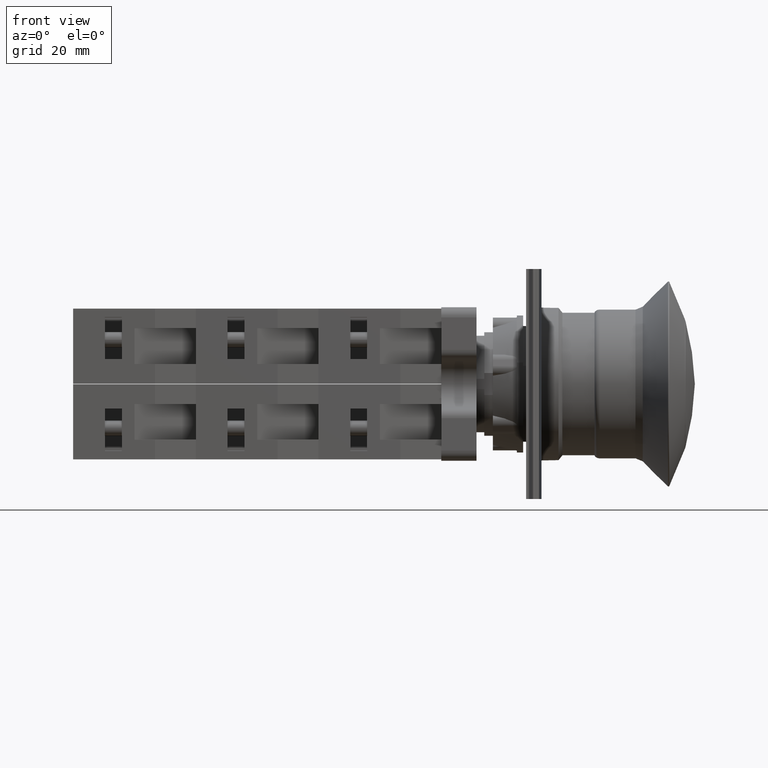
[diagram: clean part render]
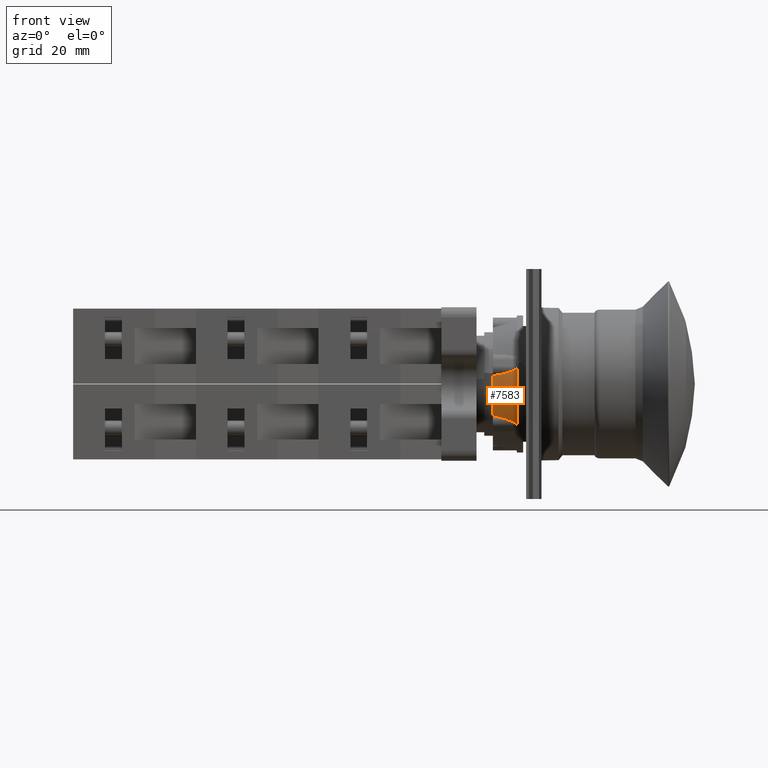
[diagram: same view with one face highlighted and labeled with its STEP entity id]
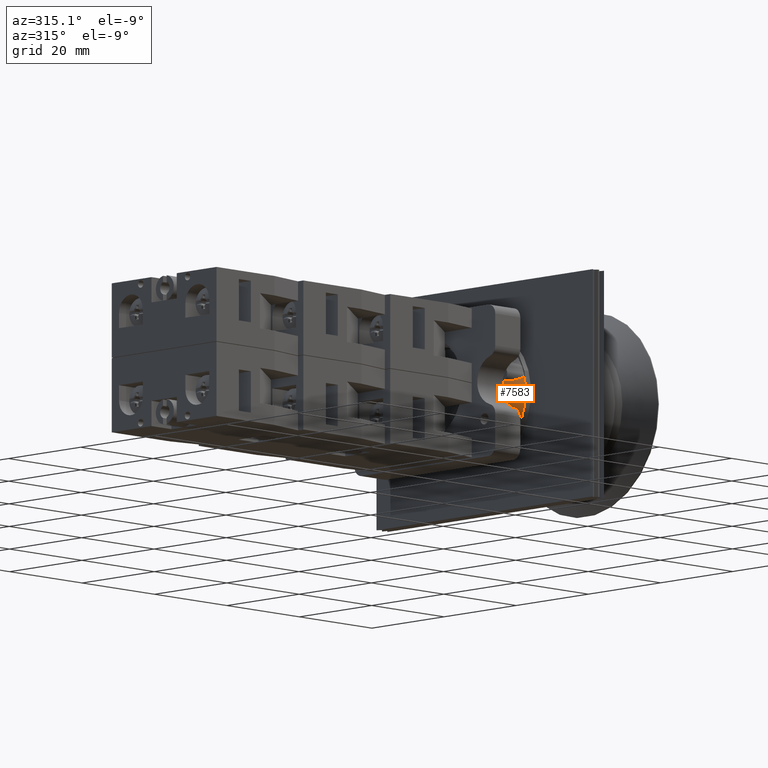
[diagram: same view with one face highlighted and labeled with its STEP entity id]
A machine part, front view. The second image highlights one B-rep face of the part: STEP entity #7583.
A second angle (auxiliary view) of the same face is appended — the face is thin or edge-on in the first view.
In plain terms, the highlighted conical surface has half-angle 14.357 deg.
Its self-contained STEP definition (entity closure, byte-faithful):
#6699=CARTESIAN_POINT('',(-5.624441413677321,18.914931874336848,-10.825933760222382));
#6700=VERTEX_POINT('',#6699);
#6708=CARTESIAN_POINT('',(-0.924441413677319,19.244718249735932,-9.063384223984867));
#6709=VERTEX_POINT('',#6708);
#6710=CARTESIAN_POINT('',(-0.924441413677319,19.244718249735932,-9.063384223984865));
#6711=CARTESIAN_POINT('',(-1.771683228070776,19.343194566671471,-9.264325757559057));
#6712=CARTESIAN_POINT('',(-2.642508015099925,19.405531265859736,-9.504138683602431));
#6713=CARTESIAN_POINT('',(-3.434810393553472,19.397010067540066,-9.771305654779747));
#6714=CARTESIAN_POINT('',(-3.583648307694508,19.395409318358475,-9.821494289572216));
#6715=CARTESIAN_POINT('',(-3.729719096947220,19.391263022758100,-9.872659971357169));
#6716=CARTESIAN_POINT('',(-3.872317070512479,19.384204800488050,-9.924780886224982));
#6717=CARTESIAN_POINT('',(-4.018377826272748,19.376975179664470,-9.978167480902116));
#6718=CARTESIAN_POINT('',(-4.169407172229653,19.366327672659747,-10.035664265001412));
#6719=CARTESIAN_POINT('',(-4.322920163511085,19.350335449332796,-10.097734828060455));
#6720=CARTESIAN_POINT('',(-4.570134522573309,19.324581881463715,-10.197692065133255));
#6721=CARTESIAN_POINT('',(-4.820924727797250,19.285654355509397,-10.308136178585210));
#6722=CARTESIAN_POINT('',(-5.047877207843794,19.222701734800324,-10.426739264444237));
#6723=CARTESIAN_POINT('',(-5.181444270855171,19.185652584003400,-10.496540069612912));
#6724=CARTESIAN_POINT('',(-5.307176962552016,19.140554111476771,-10.569123441844622));
#6725=CARTESIAN_POINT('',(-5.417192105387956,19.080253101045795,-10.646385317609532));
#6726=CARTESIAN_POINT('',(-5.488457681084371,19.041191330887049,-10.696433991945048));
#6727=CARTESIAN_POINT('',(-5.559948776567082,18.991345844627084,-10.753677919417465));
#6728=CARTESIAN_POINT('',(-5.612343651441613,18.929793662924457,-10.812033894663200));
#6729=CARTESIAN_POINT('',(-5.616499890349427,18.924911017950766,-10.816662999616701));
#6730=CARTESIAN_POINT('',(-5.620535544533194,18.919956886467048,-10.821297488183609));
#6731=CARTESIAN_POINT('',(-5.624441413677315,18.914931874336844,-10.825933760222382));
#6732=B_SPLINE_CURVE_WITH_KNOTS('',3,(#6710,#6711,#6712,#6713,#6714,#6715,#6716,#6717,#6718,#6719,#6720,#6721,#6722,#6723,#6724,#6725,#6726,#6727,#6728,#6729,#6730,#6731),.UNSPECIFIED.,.F.,.U.,(4,3,3,3,3,3,3,4),(0.144484446797568,0.386651227029856,0.432143452503640,0.478740389807778,0.553779198534960,0.597941365396970,0.626548720387324,0.628818007262143),.UNSPECIFIED.);
#6733=EDGE_CURVE('',#6709,#6700,#6732,.T.);
#7427=CARTESIAN_POINT('',(-5.624441413677320,24.599678933381583,-0.979663025779158));
#7428=VERTEX_POINT('',#7427);
#7436=CARTESIAN_POINT('',(-5.624441413677320,11.533358680345970,0.0));
#7437=DIRECTION('',(1.0,0.0,0.0));
#7438=DIRECTION('',(0.0,1.0,0.0));
#7439=AXIS2_PLACEMENT_3D('',#7436,#7437,#7438);
#7440=CIRCLE('',#7439,13.102994489770934);
#7441=EDGE_CURVE('',#6700,#7428,#7440,.T.);
#7546=CARTESIAN_POINT('',(-3.274441413677319,11.533358680345970,0.0));
#7547=DIRECTION('',(-1.0,0.0,0.0));
#7548=DIRECTION('',(0.0,1.0,0.0));
#7549=AXIS2_PLACEMENT_3D('',#7546,#7547,#7548);
#7550=CONICAL_SURFACE('',#7549,12.501497244885464,14.356985316744316);
#7551=ORIENTED_EDGE('',*,*,#6733,.T.);
#7552=ORIENTED_EDGE('',*,*,#7441,.T.);
#7553=CARTESIAN_POINT('',(-0.924441413677318,23.238159447270959,-2.146541172815514));
#7554=VERTEX_POINT('',#7553);
#7555=CARTESIAN_POINT('',(-5.624441413677310,24.599678933381576,-0.979663025779151));
#7556=CARTESIAN_POINT('',(-5.573448501602758,24.580061497426442,-1.066741943332896));
#7557=CARTESIAN_POINT('',(-5.499858718227859,24.554541087908703,-1.143111703219075));
#7558=CARTESIAN_POINT('',(-5.426497655226320,24.529959693756222,-1.204852103960991));
#7559=CARTESIAN_POINT('',(-5.353885066415694,24.505629093939959,-1.265962591577316));
#7560=CARTESIAN_POINT('',(-5.274396952157006,24.479783873195750,-1.319580926428537));
#7561=CARTESIAN_POINT('',(-5.190253476800832,24.452911586346374,-1.368800345475263));
#7562=CARTESIAN_POINT('',(-4.885104151437367,24.355458276171699,-1.547296330497443));
#7563=CARTESIAN_POINT('',(-4.520065672205876,24.244898354146777,-1.669936398299673));
#7564=CARTESIAN_POINT('',(-4.173129532818249,24.142263265430426,-1.762719587383246));
#7565=CARTESIAN_POINT('',(-3.959007105868401,24.078918828829071,-1.819983617765864));
#7566=CARTESIAN_POINT('',(-3.757275896402939,24.020146126803606,-1.864195932638044));
#7567=CARTESIAN_POINT('',(-3.544573123045920,23.958913780894378,-1.904350047473748));
#7568=CARTESIAN_POINT('',(-2.723368144514679,23.722507332054128,-2.059377452576022));
#7569=CARTESIAN_POINT('',(-1.810992263511417,23.471776492460339,-2.130648738926966));
#7570=CARTESIAN_POINT('',(-0.924441413677320,23.238159447270956,-2.146541172815514));
#7571=B_SPLINE_CURVE_WITH_KNOTS('',3,(#7555,#7556,#7557,#7558,#7559,#7560,#7561,#7562,#7563,#7564,#7565,#7566,#7567,#7568,#7569,#7570),.UNSPECIFIED.,.F.,.U.,(4,3,3,3,3,4),(0.680390622135760,0.710017202497212,0.739341514463709,0.845687181497866,0.911321716894342,1.164724182600335),.UNSPECIFIED.);
#7572=EDGE_CURVE('',#7428,#7554,#7571,.T.);
#7573=ORIENTED_EDGE('',*,*,#7572,.T.);
#7574=CARTESIAN_POINT('',(-0.924441413677319,11.533358680345970,0.0));
#7575=DIRECTION('',(1.0,0.0,0.0));
#7576=DIRECTION('',(0.0,1.0,0.0));
#7577=AXIS2_PLACEMENT_3D('',#7574,#7575,#7576);
#7578=CIRCLE('',#7577,11.899999999999999);
#7579=EDGE_CURVE('',#6709,#7554,#7578,.T.);
#7580=ORIENTED_EDGE('',*,*,#7579,.F.);
#7581=EDGE_LOOP('',(#7551,#7552,#7573,#7580));
#7582=FACE_OUTER_BOUND('',#7581,.T.);
#7583=ADVANCED_FACE('',(#7582),#7550,.T.);